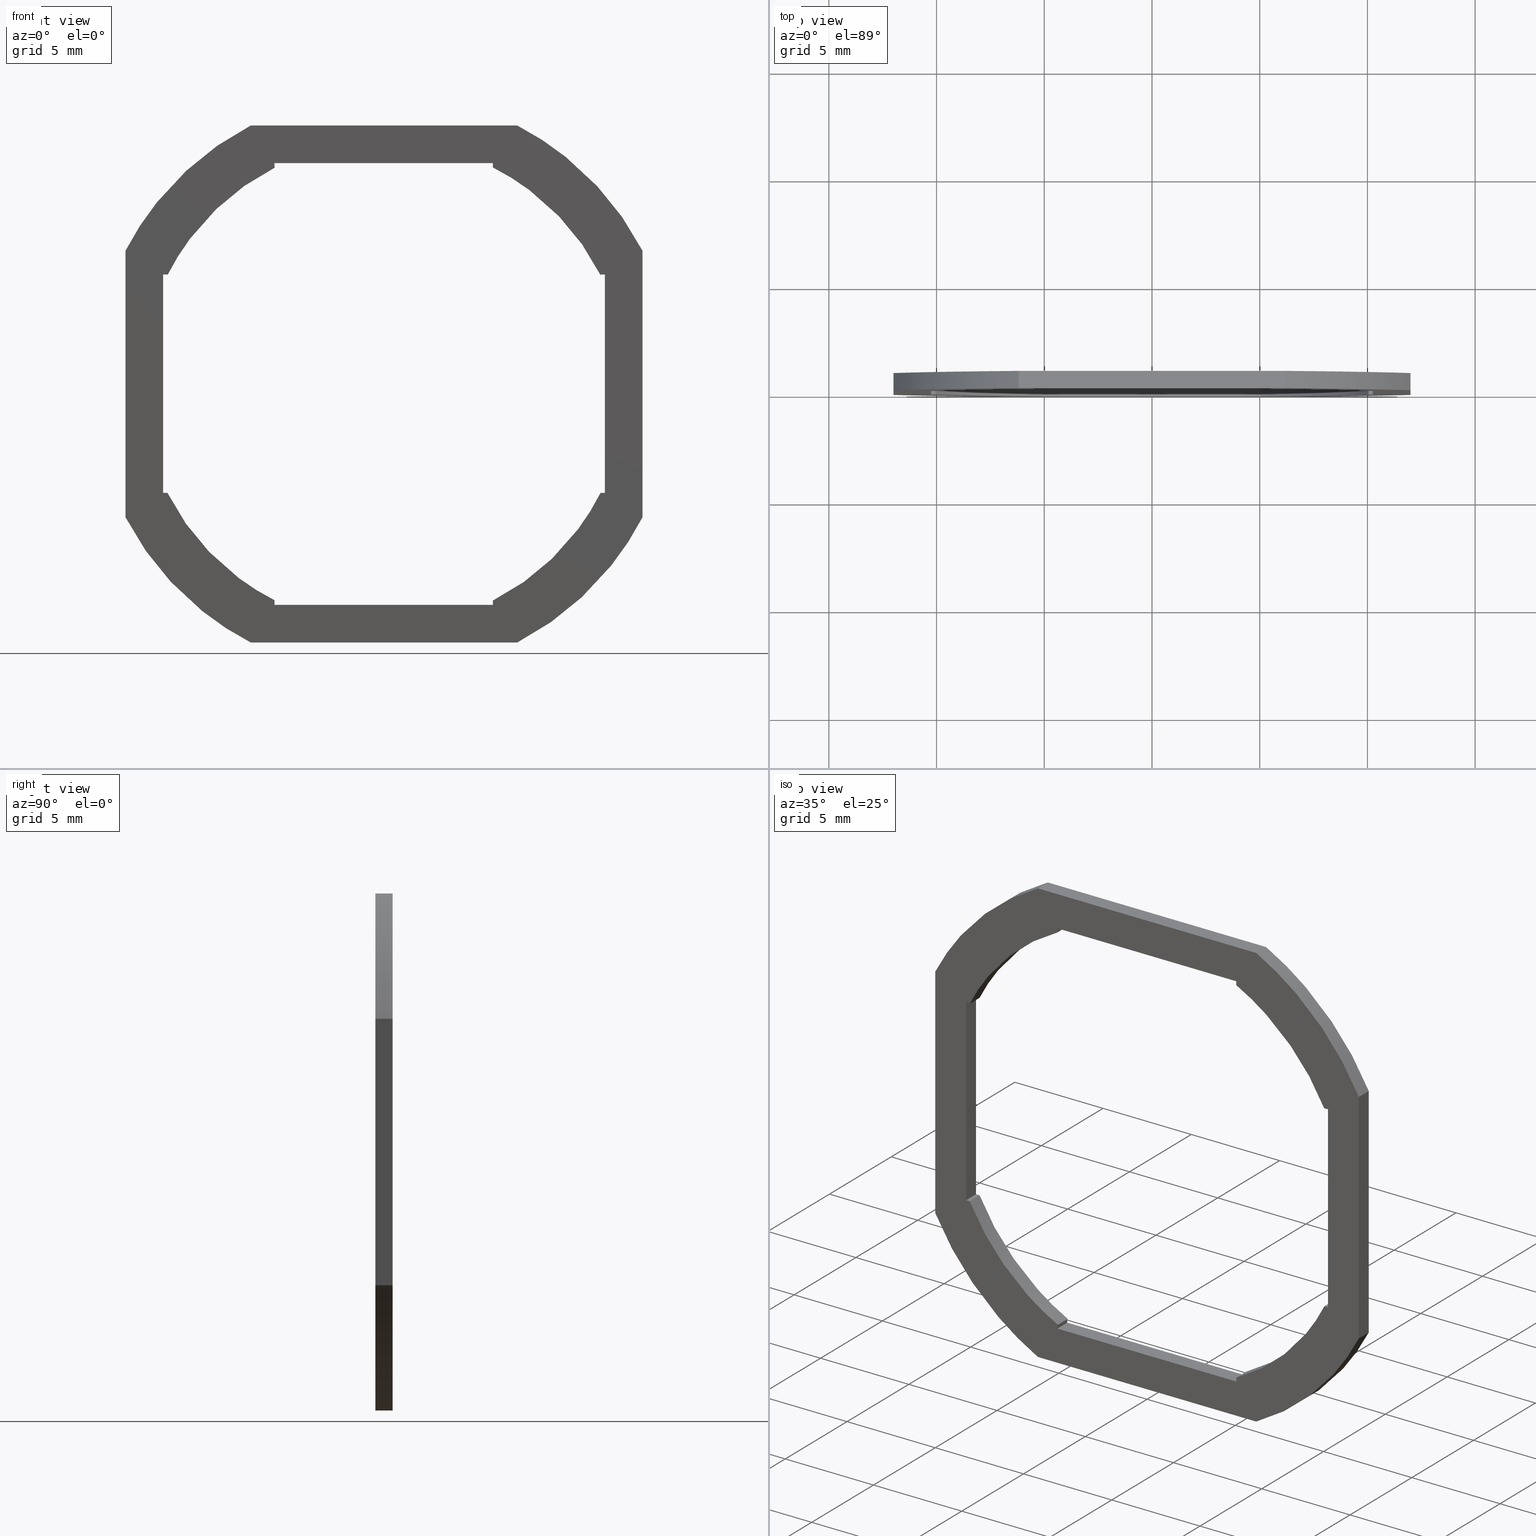
[diagram: canonical four-view strip — front | top / right | iso, engineering-drawing reading convention]
A machine part, canonical four-view strip (front | top / right | iso — engineering-drawing reading convention). The complete STEP part file that produces these views, byte-faithful:
ISO-10303-21;
HEADER;
/****************************************************************
 * Generated by software with PDE/Lib inside                    *
 * PDElib Version 4.4.1-0003, patched  Thursday August 19 11:58 *
 * International Technegroup Inc. (www.iti-oh.com)              *
 ****************************************************************/
FILE_DESCRIPTION((''),'2;1');
FILE_NAME('','2006-10-27T18:53:48',(''),(''),'','CADfix','');
FILE_SCHEMA(('AUTOMOTIVE_DESIGN'));
ENDSEC;
DATA;
#5=APPLICATION_CONTEXT('automotive design');
#6=APPLICATION_PROTOCOL_DEFINITION('Draft International Standard','automotive_design',1998,#5);
#7=PRODUCT_CONTEXT('None',#5,'mechanical');
#8=PRODUCT('packing','packing','None',(#7));
#9=PRODUCT_RELATED_PRODUCT_CATEGORY('part','description',(#8));
#10=PRODUCT_DEFINITION_FORMATION('','None',#8);
#11=PRODUCT_DEFINITION_CONTEXT('part definition',#5,'design');
#12=PRODUCT_DEFINITION('None','None',#10,#11);
#18=(NAMED_UNIT(*)PLANE_ANGLE_UNIT()SI_UNIT($,.RADIAN.));
#19=DIMENSIONAL_EXPONENTS(0.0,0.0,0.0,0.0,0.0,0.0,0.0);
#20=PLANE_ANGLE_MEASURE_WITH_UNIT(PLANE_ANGLE_MEASURE(0.017453292500000),#18);
#24=(CONVERSION_BASED_UNIT('DEGREE',#20)NAMED_UNIT(#19)PLANE_ANGLE_UNIT());
#28=(NAMED_UNIT(*)SI_UNIT($,.STERADIAN.)SOLID_ANGLE_UNIT());
#32=(LENGTH_UNIT()NAMED_UNIT(*)SI_UNIT(.MILLI.,.METRE.));
#34=UNCERTAINTY_MEASURE_WITH_UNIT(LENGTH_MEASURE(0.001000000000000),#32,'DISTANCE_ACCURACY_VALUE','');
#36=(GEOMETRIC_REPRESENTATION_CONTEXT(3)GLOBAL_UNCERTAINTY_ASSIGNED_CONTEXT((#34))GLOBAL_UNIT_ASSIGNED_CONTEXT((#24,#28,#32))REPRESENTATION_CONTEXT('None','None'));
#37=AXIS2_PLACEMENT_3D('',#38,#39,#40);
#38=CARTESIAN_POINT('',(0.0,0.0,0.0));
#39=DIRECTION('',(0.0,0.0,1.0));
#40=DIRECTION('',(1.0,0.0,0.0));
#41=ADVANCED_BREP_SHAPE_REPRESENTATION('',(#37,#1105),#36);
#42=PRODUCT_DEFINITION_SHAPE('','',#12);
#43=SHAPE_DEFINITION_REPRESENTATION(#42,#41);
#44=CARTESIAN_POINT('',(-13.198801030982510,0.0,13.198801030982469));
#45=CARTESIAN_POINT('',(13.198801245559199,0.0,13.198801030982469));
#46=CARTESIAN_POINT('',(-13.198801030982510,0.0,-13.198801245559221));
#47=CARTESIAN_POINT('',(13.198801245559199,0.0,-13.198801245559221));
#48=B_SPLINE_SURFACE_WITH_KNOTS('',1,1,((#44,#46),(#45,#47)),.UNSPECIFIED.,.F.,.F.,.U.,(2,2),(2,2),(0.0,26.397602276541718),(0.0,26.397602276541701),.UNSPECIFIED.);
#49=CARTESIAN_POINT('',(-6.184658732181810,0.0,12.000000569969499));
#50=VERTEX_POINT('',#49);
#51=CARTESIAN_POINT('',(6.184658732181830,0.0,12.000000569969499));
#52=VERTEX_POINT('',#51);
#53=CARTESIAN_POINT('',(-6.184658732181810,0.0,12.000000569969499));
#54=CARTESIAN_POINT('',(6.184658732181830,0.0,12.000000569969499));
#55=QUASI_UNIFORM_CURVE('',1,(#53,#54),.UNSPECIFIED.,.F.,.U.);
#56=EDGE_CURVE('',#50,#52,#55,.T.);
#57=ORIENTED_EDGE('',*,*,#56,.F.);
#58=CARTESIAN_POINT('',(-12.000000569969400,0.0,6.184658732181750));
#59=VERTEX_POINT('',#58);
#60=CARTESIAN_POINT('',(-6.184658732181801,0.0,12.000000569969490));
#61=CARTESIAN_POINT('',(-10.022184869378352,0.0,10.022184869378339));
#62=CARTESIAN_POINT('',(-12.000000569969400,0.0,6.184658732181750));
#70=(BOUNDED_CURVE()B_SPLINE_CURVE(2,(#60,#61,#62),.UNSPECIFIED.,.F.,.U.)CURVE()GEOMETRIC_REPRESENTATION_ITEM()QUASI_UNIFORM_CURVE()RATIONAL_B_SPLINE_CURVE((1.0,0.952481132990554,1.0))REPRESENTATION_ITEM(''));
#71=EDGE_CURVE('',#50,#59,#70,.T.);
#72=ORIENTED_EDGE('',*,*,#71,.T.);
#73=CARTESIAN_POINT('',(-12.000000569969540,0.0,-6.184658732181720));
#74=VERTEX_POINT('',#73);
#75=CARTESIAN_POINT('',(-12.000000569969540,0.0,-6.184658732181720));
#76=CARTESIAN_POINT('',(-12.000000569969400,0.0,6.184658732181750));
#77=QUASI_UNIFORM_CURVE('',1,(#75,#76),.UNSPECIFIED.,.F.,.U.);
#78=EDGE_CURVE('',#74,#59,#77,.T.);
#79=ORIENTED_EDGE('',*,*,#78,.F.);
#80=CARTESIAN_POINT('',(-6.184658732181759,0.0,-12.000000569969419));
#81=VERTEX_POINT('',#80);
#82=CARTESIAN_POINT('',(-12.000000569969540,0.0,-6.184658732181720));
#83=CARTESIAN_POINT('',(-10.022184869378391,0.0,-10.022184869378325));
#84=CARTESIAN_POINT('',(-6.184658732181759,0.0,-12.000000569969419));
#92=(BOUNDED_CURVE()B_SPLINE_CURVE(2,(#82,#83,#84),.UNSPECIFIED.,.F.,.U.)CURVE()GEOMETRIC_REPRESENTATION_ITEM()QUASI_UNIFORM_CURVE()RATIONAL_B_SPLINE_CURVE((1.0,0.952481132990553,1.0))REPRESENTATION_ITEM(''));
#93=EDGE_CURVE('',#74,#81,#92,.T.);
#94=ORIENTED_EDGE('',*,*,#93,.T.);
#95=CARTESIAN_POINT('',(6.184658732181750,0.0,-12.000000569969520));
#96=VERTEX_POINT('',#95);
#97=CARTESIAN_POINT('',(6.184658732181750,0.0,-12.000000569969520));
#98=CARTESIAN_POINT('',(-6.184658732181759,0.0,-12.000000569969419));
#99=QUASI_UNIFORM_CURVE('',1,(#97,#98),.UNSPECIFIED.,.F.,.U.);
#100=EDGE_CURVE('',#96,#81,#99,.T.);
#101=ORIENTED_EDGE('',*,*,#100,.F.);
#102=CARTESIAN_POINT('',(12.000000569969419,0.0,-6.184658732181750));
#103=VERTEX_POINT('',#102);
#104=CARTESIAN_POINT('',(6.184658732181743,0.0,-12.000000569969520));
#105=CARTESIAN_POINT('',(10.022184869378338,0.0,-10.022184869378369));
#106=CARTESIAN_POINT('',(12.000000569969419,0.0,-6.184658732181750));
#114=(BOUNDED_CURVE()B_SPLINE_CURVE(2,(#104,#105,#106),.UNSPECIFIED.,.F.,.U.)CURVE()GEOMETRIC_REPRESENTATION_ITEM()QUASI_UNIFORM_CURVE()RATIONAL_B_SPLINE_CURVE((1.0,0.952481132990553,1.0))REPRESENTATION_ITEM(''));
#115=EDGE_CURVE('',#96,#103,#114,.T.);
#116=ORIENTED_EDGE('',*,*,#115,.T.);
#117=CARTESIAN_POINT('',(12.000000569969499,0.0,6.184658732181820));
#118=VERTEX_POINT('',#117);
#119=CARTESIAN_POINT('',(12.000000569969499,0.0,6.184658732181820));
#120=CARTESIAN_POINT('',(12.000000569969419,0.0,-6.184658732181750));
#121=QUASI_UNIFORM_CURVE('',1,(#119,#120),.UNSPECIFIED.,.F.,.U.);
#122=EDGE_CURVE('',#118,#103,#121,.T.);
#123=ORIENTED_EDGE('',*,*,#122,.F.);
#124=CARTESIAN_POINT('',(12.000000569969499,0.0,6.184658732181810));
#125=CARTESIAN_POINT('',(10.022184869378350,0.0,10.022184869378339));
#126=CARTESIAN_POINT('',(6.184658732181829,0.0,12.000000569969499));
#134=(BOUNDED_CURVE()B_SPLINE_CURVE(2,(#124,#125,#126),.UNSPECIFIED.,.F.,.U.)CURVE()GEOMETRIC_REPRESENTATION_ITEM()QUASI_UNIFORM_CURVE()RATIONAL_B_SPLINE_CURVE((1.0,0.952481132990554,1.0))REPRESENTATION_ITEM(''));
#135=EDGE_CURVE('',#118,#52,#134,.T.);
#136=ORIENTED_EDGE('',*,*,#135,.T.);
#137=EDGE_LOOP('',(#57,#72,#79,#94,#101,#116,#123,#136));
#138=FACE_OUTER_BOUND('',#137,.T.);
#139=CARTESIAN_POINT('',(10.050000477349361,0.0,5.055690104038270));
#140=VERTEX_POINT('',#139);
#141=CARTESIAN_POINT('',(5.055690104038360,0.0,10.050000477349300));
#142=VERTEX_POINT('',#141);
#143=CARTESIAN_POINT('',(10.050000477349350,0.0,5.055690104038258));
#144=CARTESIAN_POINT('',(8.378465806703092,0.0,8.378465806703007));
#145=CARTESIAN_POINT('',(5.055690104038360,0.0,10.050000477349300));
#153=(BOUNDED_CURVE()B_SPLINE_CURVE(2,(#143,#144,#145),.UNSPECIFIED.,.F.,.U.)CURVE()GEOMETRIC_REPRESENTATION_ITEM()QUASI_UNIFORM_CURVE()RATIONAL_B_SPLINE_CURVE((1.0,0.949452065534999,1.0))REPRESENTATION_ITEM(''));
#154=EDGE_CURVE('',#140,#142,#153,.T.);
#155=ORIENTED_EDGE('',*,*,#154,.F.);
#156=CARTESIAN_POINT('',(10.050000477349400,0.0,5.081069177405830));
#157=VERTEX_POINT('',#156);
#158=CARTESIAN_POINT('',(10.050000477349400,0.0,5.081069177405830));
#159=CARTESIAN_POINT('',(10.050000477349361,0.0,5.055690104038270));
#160=QUASI_UNIFORM_CURVE('',1,(#158,#159),.UNSPECIFIED.,.F.,.U.);
#161=EDGE_CURVE('',#157,#140,#160,.T.);
#162=ORIENTED_EDGE('',*,*,#161,.F.);
#163=CARTESIAN_POINT('',(10.250000486848860,0.0,5.081069177405830));
#164=VERTEX_POINT('',#163);
#165=CARTESIAN_POINT('',(10.250000486848860,0.0,5.081069177405830));
#166=CARTESIAN_POINT('',(10.050000477349400,0.0,5.081069177405830));
#167=QUASI_UNIFORM_CURVE('',1,(#165,#166),.UNSPECIFIED.,.F.,.U.);
#168=EDGE_CURVE('',#164,#157,#167,.T.);
#169=ORIENTED_EDGE('',*,*,#168,.F.);
#170=CARTESIAN_POINT('',(10.250000486848860,0.0,-5.055690104038380));
#171=VERTEX_POINT('',#170);
#172=CARTESIAN_POINT('',(10.250000486848860,0.0,-5.055690104038380));
#173=CARTESIAN_POINT('',(10.250000486848860,0.0,5.081069177405830));
#174=QUASI_UNIFORM_CURVE('',1,(#172,#173),.UNSPECIFIED.,.F.,.U.);
#175=EDGE_CURVE('',#171,#164,#174,.T.);
#176=ORIENTED_EDGE('',*,*,#175,.F.);
#177=CARTESIAN_POINT('',(10.050000477349320,0.0,-5.055690104038360));
#178=VERTEX_POINT('',#177);
#179=CARTESIAN_POINT('',(10.050000477349320,0.0,-5.055690104038360));
#180=CARTESIAN_POINT('',(10.250000486848860,0.0,-5.055690104038380));
#181=QUASI_UNIFORM_CURVE('',1,(#179,#180),.UNSPECIFIED.,.F.,.U.);
#182=EDGE_CURVE('',#178,#171,#181,.T.);
#183=ORIENTED_EDGE('',*,*,#182,.F.);
#184=CARTESIAN_POINT('',(5.055690104038360,0.0,-10.050000477349300));
#185=VERTEX_POINT('',#184);
#186=CARTESIAN_POINT('',(5.055690104038356,0.0,-10.050000477349300));
#187=CARTESIAN_POINT('',(8.378465806703035,0.0,-8.378465806703034));
#188=CARTESIAN_POINT('',(10.050000477349309,0.0,-5.055690104038351));
#196=(BOUNDED_CURVE()B_SPLINE_CURVE(2,(#186,#187,#188),.UNSPECIFIED.,.F.,.U.)CURVE()GEOMETRIC_REPRESENTATION_ITEM()QUASI_UNIFORM_CURVE()RATIONAL_B_SPLINE_CURVE((1.0,0.949452065535000,1.0))REPRESENTATION_ITEM(''));
#197=EDGE_CURVE('',#185,#178,#196,.T.);
#198=ORIENTED_EDGE('',*,*,#197,.F.);
#199=CARTESIAN_POINT('',(5.055690104038391,0.0,-10.250000486848879));
#200=VERTEX_POINT('',#199);
#201=CARTESIAN_POINT('',(5.055690104038391,0.0,-10.250000486848879));
#202=CARTESIAN_POINT('',(5.055690104038360,0.0,-10.050000477349300));
#203=QUASI_UNIFORM_CURVE('',1,(#201,#202),.UNSPECIFIED.,.F.,.U.);
#204=EDGE_CURVE('',#200,#185,#203,.T.);
#205=ORIENTED_EDGE('',*,*,#204,.F.);
#206=CARTESIAN_POINT('',(-5.081069177405810,0.0,-10.250000486848879));
#207=VERTEX_POINT('',#206);
#208=CARTESIAN_POINT('',(-5.081069177405810,0.0,-10.250000486848879));
#209=CARTESIAN_POINT('',(5.055690104038391,0.0,-10.250000486848879));
#210=QUASI_UNIFORM_CURVE('',1,(#208,#209),.UNSPECIFIED.,.F.,.U.);
#211=EDGE_CURVE('',#207,#200,#210,.T.);
#212=ORIENTED_EDGE('',*,*,#211,.F.);
#213=CARTESIAN_POINT('',(-5.081069177405810,0.0,-10.050000477349400));
#214=VERTEX_POINT('',#213);
#215=CARTESIAN_POINT('',(-5.081069177405810,0.0,-10.050000477349400));
#216=CARTESIAN_POINT('',(-5.081069177405810,0.0,-10.250000486848879));
#217=QUASI_UNIFORM_CURVE('',1,(#215,#216),.UNSPECIFIED.,.F.,.U.);
#218=EDGE_CURVE('',#214,#207,#217,.T.);
#219=ORIENTED_EDGE('',*,*,#218,.F.);
#220=CARTESIAN_POINT('',(-5.055690104038270,0.0,-10.050000477349339));
#221=VERTEX_POINT('',#220);
#222=CARTESIAN_POINT('',(-5.055690104038270,0.0,-10.050000477349339));
#223=CARTESIAN_POINT('',(-5.081069177405810,0.0,-10.050000477349400));
#224=QUASI_UNIFORM_CURVE('',1,(#222,#223),.UNSPECIFIED.,.F.,.U.);
#225=EDGE_CURVE('',#221,#214,#224,.T.);
#226=ORIENTED_EDGE('',*,*,#225,.F.);
#227=CARTESIAN_POINT('',(-10.050000477349300,0.0,-5.055690104038360));
#228=VERTEX_POINT('',#227);
#229=CARTESIAN_POINT('',(-10.050000477349290,0.0,-5.055690104038348));
#230=CARTESIAN_POINT('',(-8.378465806703003,0.0,-8.378465806703074));
#231=CARTESIAN_POINT('',(-5.055690104038267,0.0,-10.050000477349339));
#239=(BOUNDED_CURVE()B_SPLINE_CURVE(2,(#229,#230,#231),.UNSPECIFIED.,.F.,.U.)CURVE()GEOMETRIC_REPRESENTATION_ITEM()QUASI_UNIFORM_CURVE()RATIONAL_B_SPLINE_CURVE((1.0,0.949452065534999,1.0))REPRESENTATION_ITEM(''));
#240=EDGE_CURVE('',#228,#221,#239,.T.);
#241=ORIENTED_EDGE('',*,*,#240,.F.);
#242=CARTESIAN_POINT('',(-10.250000486848901,0.0,-5.055690104038380));
#243=VERTEX_POINT('',#242);
#244=CARTESIAN_POINT('',(-10.250000486848901,0.0,-5.055690104038380));
#245=CARTESIAN_POINT('',(-10.050000477349300,0.0,-5.055690104038360));
#246=QUASI_UNIFORM_CURVE('',1,(#244,#245),.UNSPECIFIED.,.F.,.U.);
#247=EDGE_CURVE('',#243,#228,#246,.T.);
#248=ORIENTED_EDGE('',*,*,#247,.F.);
#249=CARTESIAN_POINT('',(-10.250000486848901,0.0,5.081069177405820));
#250=VERTEX_POINT('',#249);
#251=CARTESIAN_POINT('',(-10.250000486848901,0.0,5.081069177405820));
#252=CARTESIAN_POINT('',(-10.250000486848901,0.0,-5.055690104038380));
#253=QUASI_UNIFORM_CURVE('',1,(#251,#252),.UNSPECIFIED.,.F.,.U.);
#254=EDGE_CURVE('',#250,#243,#253,.T.);
#255=ORIENTED_EDGE('',*,*,#254,.F.);
#256=CARTESIAN_POINT('',(-10.050000477349400,0.0,5.081069177405820));
#257=VERTEX_POINT('',#256);
#258=CARTESIAN_POINT('',(-10.050000477349400,0.0,5.081069177405820));
#259=CARTESIAN_POINT('',(-10.250000486848901,0.0,5.081069177405820));
#260=QUASI_UNIFORM_CURVE('',1,(#258,#259),.UNSPECIFIED.,.F.,.U.);
#261=EDGE_CURVE('',#257,#250,#260,.T.);
#262=ORIENTED_EDGE('',*,*,#261,.F.);
#263=CARTESIAN_POINT('',(-10.050000477349339,0.0,5.055690104038281));
#264=VERTEX_POINT('',#263);
#265=CARTESIAN_POINT('',(-10.050000477349339,0.0,5.055690104038281));
#266=CARTESIAN_POINT('',(-10.050000477349400,0.0,5.081069177405820));
#267=QUASI_UNIFORM_CURVE('',1,(#265,#266),.UNSPECIFIED.,.F.,.U.);
#268=EDGE_CURVE('',#264,#257,#267,.T.);
#269=ORIENTED_EDGE('',*,*,#268,.F.);
#270=CARTESIAN_POINT('',(-5.055690104038261,0.0,10.050000477349361));
#271=VERTEX_POINT('',#270);
#272=CARTESIAN_POINT('',(-5.055690104038261,0.0,10.050000477349350));
#273=CARTESIAN_POINT('',(-8.378465806703053,0.0,8.378465806703066));
#274=CARTESIAN_POINT('',(-10.050000477349339,0.0,5.055690104038275));
#282=(BOUNDED_CURVE()B_SPLINE_CURVE(2,(#272,#273,#274),.UNSPECIFIED.,.F.,.U.)CURVE()GEOMETRIC_REPRESENTATION_ITEM()QUASI_UNIFORM_CURVE()RATIONAL_B_SPLINE_CURVE((1.0,0.949452065534997,1.0))REPRESENTATION_ITEM(''));
#283=EDGE_CURVE('',#271,#264,#282,.T.);
#284=ORIENTED_EDGE('',*,*,#283,.F.);
#285=CARTESIAN_POINT('',(-5.081069177405820,0.0,10.050000477349400));
#286=VERTEX_POINT('',#285);
#287=CARTESIAN_POINT('',(-5.081069177405820,0.0,10.050000477349400));
#288=CARTESIAN_POINT('',(-5.055690104038261,0.0,10.050000477349361));
#289=QUASI_UNIFORM_CURVE('',1,(#287,#288),.UNSPECIFIED.,.F.,.U.);
#290=EDGE_CURVE('',#286,#271,#289,.T.);
#291=ORIENTED_EDGE('',*,*,#290,.F.);
#292=CARTESIAN_POINT('',(-5.081069177405820,0.0,10.250000486848879));
#293=VERTEX_POINT('',#292);
#294=CARTESIAN_POINT('',(-5.081069177405820,0.0,10.250000486848879));
#295=CARTESIAN_POINT('',(-5.081069177405820,0.0,10.050000477349400));
#296=QUASI_UNIFORM_CURVE('',1,(#294,#295),.UNSPECIFIED.,.F.,.U.);
#297=EDGE_CURVE('',#293,#286,#296,.T.);
#298=ORIENTED_EDGE('',*,*,#297,.F.);
#299=CARTESIAN_POINT('',(5.055690104038380,0.0,10.250000486848879));
#300=VERTEX_POINT('',#299);
#301=CARTESIAN_POINT('',(5.055690104038380,0.0,10.250000486848879));
#302=CARTESIAN_POINT('',(-5.081069177405820,0.0,10.250000486848879));
#303=QUASI_UNIFORM_CURVE('',1,(#301,#302),.UNSPECIFIED.,.F.,.U.);
#304=EDGE_CURVE('',#300,#293,#303,.T.);
#305=ORIENTED_EDGE('',*,*,#304,.F.);
#306=CARTESIAN_POINT('',(5.055690104038360,0.0,10.050000477349300));
#307=CARTESIAN_POINT('',(5.055690104038380,0.0,10.250000486848879));
#308=QUASI_UNIFORM_CURVE('',1,(#306,#307),.UNSPECIFIED.,.F.,.U.);
#309=EDGE_CURVE('',#142,#300,#308,.T.);
#310=ORIENTED_EDGE('',*,*,#309,.F.);
#311=EDGE_LOOP('',(#155,#162,#169,#176,#183,#198,#205,#212,#219,#226,#241,#248,#255,#262,#269,#284,#291,#298,#305,#310));
#312=FACE_BOUND('',#311,.T.);
#313=ADVANCED_FACE('',(#138,#312),#48,.F.);
#314=CARTESIAN_POINT('',(-13.198801030982510,0.800000000000000,13.198801030982469));
#315=CARTESIAN_POINT('',(13.198801245559199,0.800000000000000,13.198801030982469));
#316=CARTESIAN_POINT('',(-13.198801030982510,0.800000000000000,-13.198801245559221));
#317=CARTESIAN_POINT('',(13.198801245559199,0.800000000000000,-13.198801245559221));
#318=B_SPLINE_SURFACE_WITH_KNOTS('',1,1,((#314,#316),(#315,#317)),.UNSPECIFIED.,.F.,.F.,.U.,(2,2),(2,2),(0.0,26.397602276541718),(0.0,26.397602276541701),.UNSPECIFIED.);
#319=CARTESIAN_POINT('',(-6.184658732181810,0.800000000000023,12.000000569969499));
#320=VERTEX_POINT('',#319);
#321=CARTESIAN_POINT('',(6.184658732181830,0.800000000000023,12.000000569969499));
#322=VERTEX_POINT('',#321);
#323=CARTESIAN_POINT('',(-6.184658732181810,0.800000000000023,12.000000569969499));
#324=CARTESIAN_POINT('',(6.184658732181830,0.800000000000023,12.000000569969499));
#325=QUASI_UNIFORM_CURVE('',1,(#323,#324),.UNSPECIFIED.,.F.,.U.);
#326=EDGE_CURVE('',#320,#322,#325,.T.);
#327=ORIENTED_EDGE('',*,*,#326,.T.);
#328=CARTESIAN_POINT('',(12.000000569969499,0.800000000000023,6.184658732181820));
#329=VERTEX_POINT('',#328);
#330=CARTESIAN_POINT('',(12.000000569969499,0.800000000000023,6.184658732181810));
#331=CARTESIAN_POINT('',(10.022184869378350,0.800000000000023,10.022184869378339));
#332=CARTESIAN_POINT('',(6.184658732181829,0.800000000000023,12.000000569969499));
#340=(BOUNDED_CURVE()B_SPLINE_CURVE(2,(#330,#331,#332),.UNSPECIFIED.,.F.,.U.)CURVE()GEOMETRIC_REPRESENTATION_ITEM()QUASI_UNIFORM_CURVE()RATIONAL_B_SPLINE_CURVE((1.0,0.952481132990554,1.0))REPRESENTATION_ITEM(''));
#341=EDGE_CURVE('',#329,#322,#340,.T.);
#342=ORIENTED_EDGE('',*,*,#341,.F.);
#343=CARTESIAN_POINT('',(12.000000569969419,0.800000000000023,-6.184658732181750));
#344=VERTEX_POINT('',#343);
#345=CARTESIAN_POINT('',(12.000000569969499,0.800000000000023,6.184658732181820));
#346=CARTESIAN_POINT('',(12.000000569969419,0.800000000000023,-6.184658732181750));
#347=QUASI_UNIFORM_CURVE('',1,(#345,#346),.UNSPECIFIED.,.F.,.U.);
#348=EDGE_CURVE('',#329,#344,#347,.T.);
#349=ORIENTED_EDGE('',*,*,#348,.T.);
#350=CARTESIAN_POINT('',(6.184658732181750,0.800000000000023,-12.000000569969520));
#351=VERTEX_POINT('',#350);
#352=CARTESIAN_POINT('',(6.184658732181743,0.800000000000023,-12.000000569969520));
#353=CARTESIAN_POINT('',(10.022184869378338,0.800000000000023,-10.022184869378369));
#354=CARTESIAN_POINT('',(12.000000569969419,0.800000000000023,-6.184658732181750));
#362=(BOUNDED_CURVE()B_SPLINE_CURVE(2,(#352,#353,#354),.UNSPECIFIED.,.F.,.U.)CURVE()GEOMETRIC_REPRESENTATION_ITEM()QUASI_UNIFORM_CURVE()RATIONAL_B_SPLINE_CURVE((1.0,0.952481132990553,1.0))REPRESENTATION_ITEM(''));
#363=EDGE_CURVE('',#351,#344,#362,.T.);
#364=ORIENTED_EDGE('',*,*,#363,.F.);
#365=CARTESIAN_POINT('',(-6.184658732181759,0.800000000000023,-12.000000569969419));
#366=VERTEX_POINT('',#365);
#367=CARTESIAN_POINT('',(6.184658732181750,0.800000000000023,-12.000000569969520));
#368=CARTESIAN_POINT('',(-6.184658732181759,0.800000000000023,-12.000000569969419));
#369=QUASI_UNIFORM_CURVE('',1,(#367,#368),.UNSPECIFIED.,.F.,.U.);
#370=EDGE_CURVE('',#351,#366,#369,.T.);
#371=ORIENTED_EDGE('',*,*,#370,.T.);
#372=CARTESIAN_POINT('',(-12.000000569969540,0.800000000000023,-6.184658732181720));
#373=VERTEX_POINT('',#372);
#374=CARTESIAN_POINT('',(-12.000000569969540,0.800000000000023,-6.184658732181720));
#375=CARTESIAN_POINT('',(-10.022184869378391,0.800000000000023,-10.022184869378325));
#376=CARTESIAN_POINT('',(-6.184658732181759,0.800000000000023,-12.000000569969419));
#384=(BOUNDED_CURVE()B_SPLINE_CURVE(2,(#374,#375,#376),.UNSPECIFIED.,.F.,.U.)CURVE()GEOMETRIC_REPRESENTATION_ITEM()QUASI_UNIFORM_CURVE()RATIONAL_B_SPLINE_CURVE((1.0,0.952481132990553,1.0))REPRESENTATION_ITEM(''));
#385=EDGE_CURVE('',#373,#366,#384,.T.);
#386=ORIENTED_EDGE('',*,*,#385,.F.);
#387=CARTESIAN_POINT('',(-12.000000569969400,0.800000000000023,6.184658732181750));
#388=VERTEX_POINT('',#387);
#389=CARTESIAN_POINT('',(-12.000000569969540,0.800000000000023,-6.184658732181720));
#390=CARTESIAN_POINT('',(-12.000000569969400,0.800000000000023,6.184658732181750));
#391=QUASI_UNIFORM_CURVE('',1,(#389,#390),.UNSPECIFIED.,.F.,.U.);
#392=EDGE_CURVE('',#373,#388,#391,.T.);
#393=ORIENTED_EDGE('',*,*,#392,.T.);
#394=CARTESIAN_POINT('',(-6.184658732181801,0.800000000000023,12.000000569969490));
#395=CARTESIAN_POINT('',(-10.022184869378352,0.800000000000023,10.022184869378339));
#396=CARTESIAN_POINT('',(-12.000000569969400,0.800000000000023,6.184658732181750));
#404=(BOUNDED_CURVE()B_SPLINE_CURVE(2,(#394,#395,#396),.UNSPECIFIED.,.F.,.U.)CURVE()GEOMETRIC_REPRESENTATION_ITEM()QUASI_UNIFORM_CURVE()RATIONAL_B_SPLINE_CURVE((1.0,0.952481132990554,1.0))REPRESENTATION_ITEM(''));
#405=EDGE_CURVE('',#320,#388,#404,.T.);
#406=ORIENTED_EDGE('',*,*,#405,.F.);
#407=EDGE_LOOP('',(#327,#342,#349,#364,#371,#386,#393,#406));
#408=FACE_OUTER_BOUND('',#407,.T.);
#409=CARTESIAN_POINT('',(10.050000477349361,0.800000000000023,5.055690104038270));
#410=VERTEX_POINT('',#409);
#411=CARTESIAN_POINT('',(5.055690104038360,0.800000000000023,10.050000477349300));
#412=VERTEX_POINT('',#411);
#413=CARTESIAN_POINT('',(10.050000477349350,0.800000000000023,5.055690104038258));
#414=CARTESIAN_POINT('',(8.378465806703092,0.800000000000023,8.378465806703007));
#415=CARTESIAN_POINT('',(5.055690104038360,0.800000000000023,10.050000477349300));
#423=(BOUNDED_CURVE()B_SPLINE_CURVE(2,(#413,#414,#415),.UNSPECIFIED.,.F.,.U.)CURVE()GEOMETRIC_REPRESENTATION_ITEM()QUASI_UNIFORM_CURVE()RATIONAL_B_SPLINE_CURVE((1.0,0.949452065534999,1.0))REPRESENTATION_ITEM(''));
#424=EDGE_CURVE('',#410,#412,#423,.T.);
#425=ORIENTED_EDGE('',*,*,#424,.T.);
#426=CARTESIAN_POINT('',(5.055690104038380,0.800000000000023,10.250000486848879));
#427=VERTEX_POINT('',#426);
#428=CARTESIAN_POINT('',(5.055690104038360,0.800000000000023,10.050000477349300));
#429=CARTESIAN_POINT('',(5.055690104038380,0.800000000000023,10.250000486848879));
#430=QUASI_UNIFORM_CURVE('',1,(#428,#429),.UNSPECIFIED.,.F.,.U.);
#431=EDGE_CURVE('',#412,#427,#430,.T.);
#432=ORIENTED_EDGE('',*,*,#431,.T.);
#433=CARTESIAN_POINT('',(-5.081069177405820,0.800000000000023,10.250000486848879));
#434=VERTEX_POINT('',#433);
#435=CARTESIAN_POINT('',(5.055690104038380,0.800000000000023,10.250000486848879));
#436=CARTESIAN_POINT('',(-5.081069177405820,0.800000000000023,10.250000486848879));
#437=QUASI_UNIFORM_CURVE('',1,(#435,#436),.UNSPECIFIED.,.F.,.U.);
#438=EDGE_CURVE('',#427,#434,#437,.T.);
#439=ORIENTED_EDGE('',*,*,#438,.T.);
#440=CARTESIAN_POINT('',(-5.081069177405820,0.800000000000023,10.050000477349400));
#441=VERTEX_POINT('',#440);
#442=CARTESIAN_POINT('',(-5.081069177405820,0.800000000000023,10.250000486848879));
#443=CARTESIAN_POINT('',(-5.081069177405820,0.800000000000023,10.050000477349400));
#444=QUASI_UNIFORM_CURVE('',1,(#442,#443),.UNSPECIFIED.,.F.,.U.);
#445=EDGE_CURVE('',#434,#441,#444,.T.);
#446=ORIENTED_EDGE('',*,*,#445,.T.);
#447=CARTESIAN_POINT('',(-5.055690104038261,0.800000000000023,10.050000477349361));
#448=VERTEX_POINT('',#447);
#449=CARTESIAN_POINT('',(-5.081069177405820,0.800000000000023,10.050000477349400));
#450=CARTESIAN_POINT('',(-5.055690104038261,0.800000000000023,10.050000477349361));
#451=QUASI_UNIFORM_CURVE('',1,(#449,#450),.UNSPECIFIED.,.F.,.U.);
#452=EDGE_CURVE('',#441,#448,#451,.T.);
#453=ORIENTED_EDGE('',*,*,#452,.T.);
#454=CARTESIAN_POINT('',(-10.050000477349339,0.800000000000023,5.055690104038281));
#455=VERTEX_POINT('',#454);
#456=CARTESIAN_POINT('',(-5.055690104038261,0.800000000000023,10.050000477349350));
#457=CARTESIAN_POINT('',(-8.378465806703053,0.800000000000023,8.378465806703066));
#458=CARTESIAN_POINT('',(-10.050000477349339,0.800000000000023,5.055690104038275));
#466=(BOUNDED_CURVE()B_SPLINE_CURVE(2,(#456,#457,#458),.UNSPECIFIED.,.F.,.U.)CURVE()GEOMETRIC_REPRESENTATION_ITEM()QUASI_UNIFORM_CURVE()RATIONAL_B_SPLINE_CURVE((1.0,0.949452065534997,1.0))REPRESENTATION_ITEM(''));
#467=EDGE_CURVE('',#448,#455,#466,.T.);
#468=ORIENTED_EDGE('',*,*,#467,.T.);
#469=CARTESIAN_POINT('',(-10.050000477349400,0.800000000000023,5.081069177405820));
#470=VERTEX_POINT('',#469);
#471=CARTESIAN_POINT('',(-10.050000477349339,0.800000000000023,5.055690104038281));
#472=CARTESIAN_POINT('',(-10.050000477349400,0.800000000000023,5.081069177405820));
#473=QUASI_UNIFORM_CURVE('',1,(#471,#472),.UNSPECIFIED.,.F.,.U.);
#474=EDGE_CURVE('',#455,#470,#473,.T.);
#475=ORIENTED_EDGE('',*,*,#474,.T.);
#476=CARTESIAN_POINT('',(-10.250000486848901,0.800000000000023,5.081069177405820));
#477=VERTEX_POINT('',#476);
#478=CARTESIAN_POINT('',(-10.050000477349400,0.800000000000023,5.081069177405820));
#479=CARTESIAN_POINT('',(-10.250000486848901,0.800000000000023,5.081069177405820));
#480=QUASI_UNIFORM_CURVE('',1,(#478,#479),.UNSPECIFIED.,.F.,.U.);
#481=EDGE_CURVE('',#470,#477,#480,.T.);
#482=ORIENTED_EDGE('',*,*,#481,.T.);
#483=CARTESIAN_POINT('',(-10.250000486848901,0.800000000000023,-5.055690104038380));
#484=VERTEX_POINT('',#483);
#485=CARTESIAN_POINT('',(-10.250000486848901,0.800000000000023,5.081069177405820));
#486=CARTESIAN_POINT('',(-10.250000486848901,0.800000000000023,-5.055690104038380));
#487=QUASI_UNIFORM_CURVE('',1,(#485,#486),.UNSPECIFIED.,.F.,.U.);
#488=EDGE_CURVE('',#477,#484,#487,.T.);
#489=ORIENTED_EDGE('',*,*,#488,.T.);
#490=CARTESIAN_POINT('',(-10.050000477349300,0.800000000000023,-5.055690104038360));
#491=VERTEX_POINT('',#490);
#492=CARTESIAN_POINT('',(-10.250000486848901,0.800000000000023,-5.055690104038380));
#493=CARTESIAN_POINT('',(-10.050000477349300,0.800000000000023,-5.055690104038360));
#494=QUASI_UNIFORM_CURVE('',1,(#492,#493),.UNSPECIFIED.,.F.,.U.);
#495=EDGE_CURVE('',#484,#491,#494,.T.);
#496=ORIENTED_EDGE('',*,*,#495,.T.);
#497=CARTESIAN_POINT('',(-5.055690104038270,0.800000000000023,-10.050000477349339));
#498=VERTEX_POINT('',#497);
#499=CARTESIAN_POINT('',(-10.050000477349290,0.800000000000023,-5.055690104038348));
#500=CARTESIAN_POINT('',(-8.378465806703003,0.800000000000023,-8.378465806703074));
#501=CARTESIAN_POINT('',(-5.055690104038267,0.800000000000023,-10.050000477349339));
#509=(BOUNDED_CURVE()B_SPLINE_CURVE(2,(#499,#500,#501),.UNSPECIFIED.,.F.,.U.)CURVE()GEOMETRIC_REPRESENTATION_ITEM()QUASI_UNIFORM_CURVE()RATIONAL_B_SPLINE_CURVE((1.0,0.949452065534999,1.0))REPRESENTATION_ITEM(''));
#510=EDGE_CURVE('',#491,#498,#509,.T.);
#511=ORIENTED_EDGE('',*,*,#510,.T.);
#512=CARTESIAN_POINT('',(-5.081069177405810,0.800000000000023,-10.050000477349400));
#513=VERTEX_POINT('',#512);
#514=CARTESIAN_POINT('',(-5.055690104038270,0.800000000000023,-10.050000477349339));
#515=CARTESIAN_POINT('',(-5.081069177405810,0.800000000000023,-10.050000477349400));
#516=QUASI_UNIFORM_CURVE('',1,(#514,#515),.UNSPECIFIED.,.F.,.U.);
#517=EDGE_CURVE('',#498,#513,#516,.T.);
#518=ORIENTED_EDGE('',*,*,#517,.T.);
#519=CARTESIAN_POINT('',(-5.081069177405810,0.800000000000023,-10.250000486848879));
#520=VERTEX_POINT('',#519);
#521=CARTESIAN_POINT('',(-5.081069177405810,0.800000000000023,-10.050000477349400));
#522=CARTESIAN_POINT('',(-5.081069177405810,0.800000000000023,-10.250000486848879));
#523=QUASI_UNIFORM_CURVE('',1,(#521,#522),.UNSPECIFIED.,.F.,.U.);
#524=EDGE_CURVE('',#513,#520,#523,.T.);
#525=ORIENTED_EDGE('',*,*,#524,.T.);
#526=CARTESIAN_POINT('',(5.055690104038391,0.800000000000023,-10.250000486848879));
#527=VERTEX_POINT('',#526);
#528=CARTESIAN_POINT('',(-5.081069177405810,0.800000000000023,-10.250000486848879));
#529=CARTESIAN_POINT('',(5.055690104038391,0.800000000000023,-10.250000486848879));
#530=QUASI_UNIFORM_CURVE('',1,(#528,#529),.UNSPECIFIED.,.F.,.U.);
#531=EDGE_CURVE('',#520,#527,#530,.T.);
#532=ORIENTED_EDGE('',*,*,#531,.T.);
#533=CARTESIAN_POINT('',(5.055690104038360,0.800000000000023,-10.050000477349300));
#534=VERTEX_POINT('',#533);
#535=CARTESIAN_POINT('',(5.055690104038391,0.800000000000023,-10.250000486848879));
#536=CARTESIAN_POINT('',(5.055690104038360,0.800000000000023,-10.050000477349300));
#537=QUASI_UNIFORM_CURVE('',1,(#535,#536),.UNSPECIFIED.,.F.,.U.);
#538=EDGE_CURVE('',#527,#534,#537,.T.);
#539=ORIENTED_EDGE('',*,*,#538,.T.);
#540=CARTESIAN_POINT('',(10.050000477349320,0.800000000000023,-5.055690104038360));
#541=VERTEX_POINT('',#540);
#542=CARTESIAN_POINT('',(5.055690104038356,0.800000000000023,-10.050000477349300));
#543=CARTESIAN_POINT('',(8.378465806703035,0.800000000000023,-8.378465806703034));
#544=CARTESIAN_POINT('',(10.050000477349309,0.800000000000023,-5.055690104038351));
#552=(BOUNDED_CURVE()B_SPLINE_CURVE(2,(#542,#543,#544),.UNSPECIFIED.,.F.,.U.)CURVE()GEOMETRIC_REPRESENTATION_ITEM()QUASI_UNIFORM_CURVE()RATIONAL_B_SPLINE_CURVE((1.0,0.949452065535000,1.0))REPRESENTATION_ITEM(''));
#553=EDGE_CURVE('',#534,#541,#552,.T.);
#554=ORIENTED_EDGE('',*,*,#553,.T.);
#555=CARTESIAN_POINT('',(10.250000486848860,0.800000000000023,-5.055690104038380));
#556=VERTEX_POINT('',#555);
#557=CARTESIAN_POINT('',(10.050000477349320,0.800000000000023,-5.055690104038360));
#558=CARTESIAN_POINT('',(10.250000486848860,0.800000000000023,-5.055690104038380));
#559=QUASI_UNIFORM_CURVE('',1,(#557,#558),.UNSPECIFIED.,.F.,.U.);
#560=EDGE_CURVE('',#541,#556,#559,.T.);
#561=ORIENTED_EDGE('',*,*,#560,.T.);
#562=CARTESIAN_POINT('',(10.250000486848860,0.800000000000023,5.081069177405830));
#563=VERTEX_POINT('',#562);
#564=CARTESIAN_POINT('',(10.250000486848860,0.800000000000023,-5.055690104038380));
#565=CARTESIAN_POINT('',(10.250000486848860,0.800000000000023,5.081069177405830));
#566=QUASI_UNIFORM_CURVE('',1,(#564,#565),.UNSPECIFIED.,.F.,.U.);
#567=EDGE_CURVE('',#556,#563,#566,.T.);
#568=ORIENTED_EDGE('',*,*,#567,.T.);
#569=CARTESIAN_POINT('',(10.050000477349400,0.800000000000023,5.081069177405830));
#570=VERTEX_POINT('',#569);
#571=CARTESIAN_POINT('',(10.250000486848860,0.800000000000023,5.081069177405830));
#572=CARTESIAN_POINT('',(10.050000477349400,0.800000000000023,5.081069177405830));
#573=QUASI_UNIFORM_CURVE('',1,(#571,#572),.UNSPECIFIED.,.F.,.U.);
#574=EDGE_CURVE('',#563,#570,#573,.T.);
#575=ORIENTED_EDGE('',*,*,#574,.T.);
#576=CARTESIAN_POINT('',(10.050000477349400,0.800000000000023,5.081069177405830));
#577=CARTESIAN_POINT('',(10.050000477349361,0.800000000000023,5.055690104038270));
#578=QUASI_UNIFORM_CURVE('',1,(#576,#577),.UNSPECIFIED.,.F.,.U.);
#579=EDGE_CURVE('',#570,#410,#578,.T.);
#580=ORIENTED_EDGE('',*,*,#579,.T.);
#581=EDGE_LOOP('',(#425,#432,#439,#446,#453,#468,#475,#482,#489,#496,#511,#518,#525,#532,#539,#554,#561,#568,#575,#580));
#582=FACE_BOUND('',#581,.T.);
#583=ADVANCED_FACE('',(#408,#582),#318,.T.);
#584=CARTESIAN_POINT('',(10.050000477349361,-0.039959998449446,5.054422622310875));
#585=CARTESIAN_POINT('',(10.050000477349400,-0.039959998449446,5.082336659133225));
#586=CARTESIAN_POINT('',(10.050000477349361,0.839960019907141,5.054422622310875));
#587=CARTESIAN_POINT('',(10.050000477349400,0.839960019907141,5.082336659133225));
#588=B_SPLINE_SURFACE_WITH_KNOTS('',1,1,((#584,#586),(#585,#587)),.UNSPECIFIED.,.F.,.F.,.U.,(2,2),(2,2),(0.0,0.027914036822351),(0.041708334948495,0.958291687403247),.UNSPECIFIED.);
#589=ORIENTED_EDGE('',*,*,#161,.T.);
#590=CARTESIAN_POINT('',(10.050000477349361,0.800000000000023,5.055690104038270));
#591=CARTESIAN_POINT('',(10.050000477349361,0.0,5.055690104038270));
#592=QUASI_UNIFORM_CURVE('',1,(#590,#591),.UNSPECIFIED.,.F.,.U.);
#593=EDGE_CURVE('',#410,#140,#592,.T.);
#594=ORIENTED_EDGE('',*,*,#593,.F.);
#595=ORIENTED_EDGE('',*,*,#579,.F.);
#596=CARTESIAN_POINT('',(10.050000477349400,0.800000000000023,5.081069177405830));
#597=CARTESIAN_POINT('',(10.050000477349400,0.0,5.081069177405830));
#598=QUASI_UNIFORM_CURVE('',1,(#596,#597),.UNSPECIFIED.,.F.,.U.);
#599=EDGE_CURVE('',#570,#157,#598,.T.);
#600=ORIENTED_EDGE('',*,*,#599,.T.);
#601=EDGE_LOOP('',(#589,#594,#595,#600));
#602=FACE_OUTER_BOUND('',#601,.T.);
#603=ADVANCED_FACE('',(#602),#588,.F.);
#604=CARTESIAN_POINT('',(-12.181558244355090,0.820000000000024,5.818905056125733));
#605=CARTESIAN_POINT('',(-12.181558244355090,-0.020500000000001,5.818905056125733));
#606=CARTESIAN_POINT('',(-10.124041075751940,0.820000000000024,10.126204279321414));
#607=CARTESIAN_POINT('',(-10.124041075751940,-0.020500000000001,10.126204279321414));
#608=CARTESIAN_POINT('',(-5.816302368192584,0.820000000000024,12.182801158788486));
#609=CARTESIAN_POINT('',(-5.816302368192584,-0.020500000000001,12.182801158788486));
#617=(BOUNDED_SURFACE()B_SPLINE_SURFACE(1,2,((#604,#606,#608),(#605,#607,#609)),.UNSPECIFIED.,.F.,.F.,.U.)B_SPLINE_SURFACE_WITH_KNOTS((2,2),(3,3),(0.0,1.0),(0.0,9.265852647169615),.UNSPECIFIED.)GEOMETRIC_REPRESENTATION_ITEM()RATIONAL_B_SPLINE_SURFACE(((0.999040341611489,0.938435643467747,0.991719776889732),(0.999040341611489,0.938435643467747,0.991719776889732)))REPRESENTATION_ITEM('')SURFACE());
#618=ORIENTED_EDGE('',*,*,#71,.F.);
#619=CARTESIAN_POINT('',(-6.184658732181810,0.800000000000023,12.000000569969499));
#620=CARTESIAN_POINT('',(-6.184658732181810,0.0,12.000000569969499));
#621=QUASI_UNIFORM_CURVE('',1,(#619,#620),.UNSPECIFIED.,.F.,.U.);
#622=EDGE_CURVE('',#320,#50,#621,.T.);
#623=ORIENTED_EDGE('',*,*,#622,.F.);
#624=ORIENTED_EDGE('',*,*,#405,.T.);
#625=CARTESIAN_POINT('',(-12.000000569969400,0.800000000000023,6.184658732181750));
#626=CARTESIAN_POINT('',(-12.000000569969400,0.0,6.184658732181750));
#627=QUASI_UNIFORM_CURVE('',1,(#625,#626),.UNSPECIFIED.,.F.,.U.);
#628=EDGE_CURVE('',#388,#59,#627,.T.);
#629=ORIENTED_EDGE('',*,*,#628,.T.);
#630=EDGE_LOOP('',(#618,#623,#624,#629));
#631=FACE_OUTER_BOUND('',#630,.T.);
#632=ADVANCED_FACE('',(#631),#617,.T.);
#633=CARTESIAN_POINT('',(-12.000000569969520,-0.039959998449446,6.802505839132072));
#634=CARTESIAN_POINT('',(-12.000000569969520,-0.039959998449446,-6.802505507361095));
#635=CARTESIAN_POINT('',(-12.000000569969520,0.839960019907141,6.802505839132072));
#636=CARTESIAN_POINT('',(-12.000000569969520,0.839960019907141,-6.802505507361095));
#637=B_SPLINE_SURFACE_WITH_KNOTS('',1,1,((#633,#635),(#634,#636)),.UNSPECIFIED.,.F.,.F.,.U.,(2,2),(2,2),(0.0,13.605011346493169),(0.041708334948495,0.958291687403247),.UNSPECIFIED.);
#638=ORIENTED_EDGE('',*,*,#78,.T.);
#639=ORIENTED_EDGE('',*,*,#628,.F.);
#640=ORIENTED_EDGE('',*,*,#392,.F.);
#641=CARTESIAN_POINT('',(-12.000000569969540,0.800000000000023,-6.184658732181720));
#642=CARTESIAN_POINT('',(-12.000000569969540,0.0,-6.184658732181720));
#643=QUASI_UNIFORM_CURVE('',1,(#641,#642),.UNSPECIFIED.,.F.,.U.);
#644=EDGE_CURVE('',#373,#74,#643,.T.);
#645=ORIENTED_EDGE('',*,*,#644,.T.);
#646=EDGE_LOOP('',(#638,#639,#640,#645));
#647=FACE_OUTER_BOUND('',#646,.T.);
#648=ADVANCED_FACE('',(#647),#637,.F.);
#649=CARTESIAN_POINT('',(-5.868416009485024,0.820000000000024,-12.157783961415040));
#650=CARTESIAN_POINT('',(-5.868416009485024,-0.020500000000001,-12.157783961415040));
#651=CARTESIAN_POINT('',(-10.139227802818388,0.820000000000024,-10.096314504395847));
#652=CARTESIAN_POINT('',(-10.139227802818388,-0.020500000000001,-10.096314504395847));
#653=CARTESIAN_POINT('',(-12.182564669295052,0.820000000000024,-5.816797692138224));
#654=CARTESIAN_POINT('',(-12.182564669295052,-0.020500000000001,-5.816797692138224));
#662=(BOUNDED_SURFACE()B_SPLINE_SURFACE(1,2,((#649,#651,#653),(#650,#652,#654)),.UNSPECIFIED.,.F.,.F.,.U.)B_SPLINE_SURFACE_WITH_KNOTS((2,2),(3,3),(0.0,1.0),(0.0,9.208780880227145),.UNSPECIFIED.)GEOMETRIC_REPRESENTATION_ITEM()RATIONAL_B_SPLINE_SURFACE(((1.0,0.941672334594672,0.996170548740779),(1.0,0.941672334594672,0.996170548740779)))REPRESENTATION_ITEM('')SURFACE());
#663=ORIENTED_EDGE('',*,*,#93,.F.);
#664=ORIENTED_EDGE('',*,*,#644,.F.);
#665=ORIENTED_EDGE('',*,*,#385,.T.);
#666=CARTESIAN_POINT('',(-6.184658732181759,0.800000000000023,-12.000000569969419));
#667=CARTESIAN_POINT('',(-6.184658732181759,0.0,-12.000000569969419));
#668=QUASI_UNIFORM_CURVE('',1,(#666,#667),.UNSPECIFIED.,.F.,.U.);
#669=EDGE_CURVE('',#366,#81,#668,.T.);
#670=ORIENTED_EDGE('',*,*,#669,.T.);
#671=EDGE_LOOP('',(#663,#664,#665,#670));
#672=FACE_OUTER_BOUND('',#671,.T.);
#673=ADVANCED_FACE('',(#672),#662,.T.);
#674=CARTESIAN_POINT('',(-6.802505839132084,-0.039959998449446,-12.000000569969499));
#675=CARTESIAN_POINT('',(6.802505507361127,-0.039959998449446,-12.000000569969499));
#676=CARTESIAN_POINT('',(-6.802505839132084,0.839960019907141,-12.000000569969499));
#677=CARTESIAN_POINT('',(6.802505507361127,0.839960019907141,-12.000000569969499));
#678=B_SPLINE_SURFACE_WITH_KNOTS('',1,1,((#674,#676),(#675,#677)),.UNSPECIFIED.,.F.,.F.,.U.,(2,2),(2,2),(0.0,13.605011346493210),(0.041708334948495,0.958291687403247),.UNSPECIFIED.);
#679=ORIENTED_EDGE('',*,*,#100,.T.);
#680=ORIENTED_EDGE('',*,*,#669,.F.);
#681=ORIENTED_EDGE('',*,*,#370,.F.);
#682=CARTESIAN_POINT('',(6.184658732181750,0.800000000000023,-12.000000569969520));
#683=CARTESIAN_POINT('',(6.184658732181750,0.0,-12.000000569969520));
#684=QUASI_UNIFORM_CURVE('',1,(#682,#683),.UNSPECIFIED.,.F.,.U.);
#685=EDGE_CURVE('',#351,#96,#684,.T.);
#686=ORIENTED_EDGE('',*,*,#685,.T.);
#687=EDGE_LOOP('',(#679,#680,#681,#686));
#688=FACE_OUTER_BOUND('',#687,.T.);
#689=ADVANCED_FACE('',(#688),#678,.F.);
#690=CARTESIAN_POINT('',(12.053514290689570,0.820000000000024,-6.079704808373793));
#691=CARTESIAN_POINT('',(12.053514290689570,-0.020500000000001,-6.079704808373793));
#692=CARTESIAN_POINT('',(9.977097158951194,0.820000000000024,-10.196372370320040));
#693=CARTESIAN_POINT('',(9.977097158951194,-0.020500000000001,-10.196372370320040));
#694=CARTESIAN_POINT('',(5.816268380479896,0.820000000000024,-12.182817385114598));
#695=CARTESIAN_POINT('',(5.816268380479896,-0.020500000000001,-12.182817385114598));
#703=(BOUNDED_SURFACE()B_SPLINE_SURFACE(1,2,((#690,#692,#694),(#691,#693,#695)),.UNSPECIFIED.,.F.,.F.,.U.)B_SPLINE_SURFACE_WITH_KNOTS((2,2),(3,3),(0.0,1.0),(0.0,8.967091421746005),.UNSPECIFIED.)GEOMETRIC_REPRESENTATION_ITEM()RATIONAL_B_SPLINE_SURFACE(((1.0,0.944567109437734,0.996278055582463),(1.0,0.944567109437734,0.996278055582463)))REPRESENTATION_ITEM('')SURFACE());
#704=ORIENTED_EDGE('',*,*,#115,.F.);
#705=ORIENTED_EDGE('',*,*,#685,.F.);
#706=ORIENTED_EDGE('',*,*,#363,.T.);
#707=CARTESIAN_POINT('',(12.000000569969419,0.800000000000023,-6.184658732181750));
#708=CARTESIAN_POINT('',(12.000000569969419,0.0,-6.184658732181750));
#709=QUASI_UNIFORM_CURVE('',1,(#707,#708),.UNSPECIFIED.,.F.,.U.);
#710=EDGE_CURVE('',#344,#103,#709,.T.);
#711=ORIENTED_EDGE('',*,*,#710,.T.);
#712=EDGE_LOOP('',(#704,#705,#706,#711));
#713=FACE_OUTER_BOUND('',#712,.T.);
#714=ADVANCED_FACE('',(#713),#703,.T.);
#715=CARTESIAN_POINT('',(12.000000569969520,-0.039959998449446,-6.802505839132079));
#716=CARTESIAN_POINT('',(12.000000569969520,-0.039959998449446,6.802505507361199));
#717=CARTESIAN_POINT('',(12.000000569969520,0.839960019907141,-6.802505839132079));
#718=CARTESIAN_POINT('',(12.000000569969520,0.839960019907141,6.802505507361199));
#719=B_SPLINE_SURFACE_WITH_KNOTS('',1,1,((#715,#717),(#716,#718)),.UNSPECIFIED.,.F.,.F.,.U.,(2,2),(2,2),(0.0,13.605011346493280),(0.041708334948495,0.958291687403247),.UNSPECIFIED.);
#720=ORIENTED_EDGE('',*,*,#122,.T.);
#721=ORIENTED_EDGE('',*,*,#710,.F.);
#722=ORIENTED_EDGE('',*,*,#348,.F.);
#723=CARTESIAN_POINT('',(12.000000569969499,0.800000000000023,6.184658732181820));
#724=CARTESIAN_POINT('',(12.000000569969499,0.0,6.184658732181820));
#725=QUASI_UNIFORM_CURVE('',1,(#723,#724),.UNSPECIFIED.,.F.,.U.);
#726=EDGE_CURVE('',#329,#118,#725,.T.);
#727=ORIENTED_EDGE('',*,*,#726,.T.);
#728=EDGE_LOOP('',(#720,#721,#722,#727));
#729=FACE_OUTER_BOUND('',#728,.T.);
#730=ADVANCED_FACE('',(#729),#719,.F.);
#731=CARTESIAN_POINT('',(5.817886638086550,0.820000000000024,12.182044671531752));
#732=CARTESIAN_POINT('',(5.817886638086550,-0.020500000000001,12.182044671531752));
#733=CARTESIAN_POINT('',(10.125355226609974,0.820000000000024,10.124888863877258));
#734=CARTESIAN_POINT('',(10.125355226609974,-0.020500000000001,10.124888863877258));
#735=CARTESIAN_POINT('',(12.182312630244580,0.820000000000024,5.817325527405537));
#736=CARTESIAN_POINT('',(12.182312630244580,-0.020500000000001,5.817325527405537));
#744=(BOUNDED_SURFACE()B_SPLINE_SURFACE(1,2,((#731,#733,#735),(#732,#734,#736)),.UNSPECIFIED.,.F.,.F.,.U.)B_SPLINE_SURFACE_WITH_KNOTS((2,2),(3,3),(0.0,1.0),(0.0,9.265878058342544),.UNSPECIFIED.)GEOMETRIC_REPRESENTATION_ITEM()RATIONAL_B_SPLINE_SURFACE(((0.997643154738916,0.939830296697317,0.996062537067335),(0.997643154738916,0.939830296697317,0.996062537067335)))REPRESENTATION_ITEM('')SURFACE());
#745=ORIENTED_EDGE('',*,*,#135,.F.);
#746=ORIENTED_EDGE('',*,*,#726,.F.);
#747=ORIENTED_EDGE('',*,*,#341,.T.);
#748=CARTESIAN_POINT('',(6.184658732181830,0.800000000000023,12.000000569969499));
#749=CARTESIAN_POINT('',(6.184658732181830,0.0,12.000000569969499));
#750=QUASI_UNIFORM_CURVE('',1,(#748,#749),.UNSPECIFIED.,.F.,.U.);
#751=EDGE_CURVE('',#322,#52,#750,.T.);
#752=ORIENTED_EDGE('',*,*,#751,.T.);
#753=EDGE_LOOP('',(#745,#746,#747,#752));
#754=FACE_OUTER_BOUND('',#753,.T.);
#755=ADVANCED_FACE('',(#754),#744,.T.);
#756=CARTESIAN_POINT('',(6.802505839132161,-0.039959998449446,12.000000569969520));
#757=CARTESIAN_POINT('',(-6.802505507361195,-0.039959998449446,12.000000569969520));
#758=CARTESIAN_POINT('',(6.802505839132161,0.839960019907141,12.000000569969520));
#759=CARTESIAN_POINT('',(-6.802505507361195,0.839960019907141,12.000000569969520));
#760=B_SPLINE_SURFACE_WITH_KNOTS('',1,1,((#756,#758),(#757,#759)),.UNSPECIFIED.,.F.,.F.,.U.,(2,2),(2,2),(0.0,13.605011346493360),(0.041708334948495,0.958291687403247),.UNSPECIFIED.);
#761=ORIENTED_EDGE('',*,*,#56,.T.);
#762=ORIENTED_EDGE('',*,*,#751,.F.);
#763=ORIENTED_EDGE('',*,*,#326,.F.);
#764=ORIENTED_EDGE('',*,*,#622,.T.);
#765=EDGE_LOOP('',(#761,#762,#763,#764));
#766=FACE_OUTER_BOUND('',#765,.T.);
#767=ADVANCED_FACE('',(#766),#760,.F.);
#768=CARTESIAN_POINT('',(10.040010152126669,-0.039959998449446,5.081069177405830));
#769=CARTESIAN_POINT('',(10.259990987309260,-0.039959998449446,5.081069177405830));
#770=CARTESIAN_POINT('',(10.040010152126669,0.839960019907141,5.081069177405830));
#771=CARTESIAN_POINT('',(10.259990987309260,0.839960019907141,5.081069177405830));
#772=B_SPLINE_SURFACE_WITH_KNOTS('',1,1,((#768,#770),(#769,#771)),.UNSPECIFIED.,.F.,.F.,.U.,(2,2),(2,2),(0.0,0.219980835182588),(0.041708334948495,0.958291687403247),.UNSPECIFIED.);
#773=ORIENTED_EDGE('',*,*,#168,.T.);
#774=ORIENTED_EDGE('',*,*,#599,.F.);
#775=ORIENTED_EDGE('',*,*,#574,.F.);
#776=CARTESIAN_POINT('',(10.250000486848860,0.800000000000023,5.081069177405830));
#777=CARTESIAN_POINT('',(10.250000486848860,0.0,5.081069177405830));
#778=QUASI_UNIFORM_CURVE('',1,(#776,#777),.UNSPECIFIED.,.F.,.U.);
#779=EDGE_CURVE('',#563,#164,#778,.T.);
#780=ORIENTED_EDGE('',*,*,#779,.T.);
#781=EDGE_LOOP('',(#773,#774,#775,#780));
#782=FACE_OUTER_BOUND('',#781,.T.);
#783=ADVANCED_FACE('',(#782),#772,.F.);
#784=CARTESIAN_POINT('',(10.250000486848860,-0.039959998449446,5.587400093553675));
#785=CARTESIAN_POINT('',(10.250000486848860,-0.039959998449446,-5.562021473334678));
#786=CARTESIAN_POINT('',(10.250000486848860,0.839960019907141,5.587400093553675));
#787=CARTESIAN_POINT('',(10.250000486848860,0.839960019907141,-5.562021473334678));
#788=B_SPLINE_SURFACE_WITH_KNOTS('',1,1,((#784,#786),(#785,#787)),.UNSPECIFIED.,.F.,.F.,.U.,(2,2),(2,2),(0.0,11.149421566888350),(0.041708334948495,0.958291687403247),.UNSPECIFIED.);
#789=ORIENTED_EDGE('',*,*,#175,.T.);
#790=ORIENTED_EDGE('',*,*,#779,.F.);
#791=ORIENTED_EDGE('',*,*,#567,.F.);
#792=CARTESIAN_POINT('',(10.250000486848860,0.800000000000023,-5.055690104038380));
#793=CARTESIAN_POINT('',(10.250000486848860,0.0,-5.055690104038380));
#794=QUASI_UNIFORM_CURVE('',1,(#792,#793),.UNSPECIFIED.,.F.,.U.);
#795=EDGE_CURVE('',#556,#171,#794,.T.);
#796=ORIENTED_EDGE('',*,*,#795,.T.);
#797=EDGE_LOOP('',(#789,#790,#791,#796));
#798=FACE_OUTER_BOUND('',#797,.T.);
#799=ADVANCED_FACE('',(#798),#788,.F.);
#800=CARTESIAN_POINT('',(10.259990991242811,-0.039959998449446,-5.055690104038380));
#801=CARTESIAN_POINT('',(10.040010148193041,-0.039959998449446,-5.055690104038380));
#802=CARTESIAN_POINT('',(10.259990991242811,0.839960019907141,-5.055690104038380));
#803=CARTESIAN_POINT('',(10.040010148193041,0.839960019907141,-5.055690104038380));
#804=B_SPLINE_SURFACE_WITH_KNOTS('',1,1,((#800,#802),(#801,#803)),.UNSPECIFIED.,.F.,.F.,.U.,(2,2),(2,2),(0.0,0.219980843049774),(0.041708334948495,0.958291687403247),.UNSPECIFIED.);
#805=ORIENTED_EDGE('',*,*,#182,.T.);
#806=ORIENTED_EDGE('',*,*,#795,.F.);
#807=ORIENTED_EDGE('',*,*,#560,.F.);
#808=CARTESIAN_POINT('',(10.050000477349320,0.800000000000023,-5.055690104038360));
#809=CARTESIAN_POINT('',(10.050000477349320,0.0,-5.055690104038360));
#810=QUASI_UNIFORM_CURVE('',1,(#808,#809),.UNSPECIFIED.,.F.,.U.);
#811=EDGE_CURVE('',#541,#178,#810,.T.);
#812=ORIENTED_EDGE('',*,*,#811,.T.);
#813=EDGE_LOOP('',(#805,#806,#807,#812));
#814=FACE_OUTER_BOUND('',#813,.T.);
#815=ADVANCED_FACE('',(#814),#804,.F.);
#816=CARTESIAN_POINT('',(10.202628220121548,0.820000000000024,-4.740136013319844));
#817=CARTESIAN_POINT('',(10.202628220121548,-0.020500000000001,-4.740136013319844));
#818=CARTESIAN_POINT('',(8.469178570770632,0.820000000000024,-8.471198215106973));
#819=CARTESIAN_POINT('',(8.469178570770632,-0.020500000000001,-8.471198215106973));
#820=CARTESIAN_POINT('',(4.737703148736636,0.820000000000024,-10.203758175164841));
#821=CARTESIAN_POINT('',(4.737703148736636,-0.020500000000001,-10.203758175164841));
#829=(BOUNDED_SURFACE()B_SPLINE_SURFACE(1,2,((#816,#818,#820),(#817,#819,#821)),.UNSPECIFIED.,.F.,.F.,.U.)B_SPLINE_SURFACE_WITH_KNOTS((2,2),(3,3),(0.0,1.0),(0.0,7.970024351864240),.UNSPECIFIED.)GEOMETRIC_REPRESENTATION_ITEM()RATIONAL_B_SPLINE_SURFACE(((0.999589059613548,0.935053242562829,0.991658737121429),(0.999589059613548,0.935053242562829,0.991658737121429)))REPRESENTATION_ITEM('')SURFACE());
#830=ORIENTED_EDGE('',*,*,#197,.T.);
#831=ORIENTED_EDGE('',*,*,#811,.F.);
#832=ORIENTED_EDGE('',*,*,#553,.F.);
#833=CARTESIAN_POINT('',(5.055690104038360,0.800000000000023,-10.050000477349300));
#834=CARTESIAN_POINT('',(5.055690104038360,0.0,-10.050000477349300));
#835=QUASI_UNIFORM_CURVE('',1,(#833,#834),.UNSPECIFIED.,.F.,.U.);
#836=EDGE_CURVE('',#534,#185,#835,.T.);
#837=ORIENTED_EDGE('',*,*,#836,.T.);
#838=EDGE_LOOP('',(#830,#831,#832,#837));
#839=FACE_OUTER_BOUND('',#838,.T.);
#840=ADVANCED_FACE('',(#839),#829,.F.);
#841=CARTESIAN_POINT('',(5.055690104038360,-0.039959998449446,-10.040010152126561));
#842=CARTESIAN_POINT('',(5.055690104038392,-0.039959998449446,-10.259990987309280));
#843=CARTESIAN_POINT('',(5.055690104038360,0.839960019907141,-10.040010152126561));
#844=CARTESIAN_POINT('',(5.055690104038392,0.839960019907141,-10.259990987309280));
#845=B_SPLINE_SURFACE_WITH_KNOTS('',1,1,((#841,#843),(#842,#844)),.UNSPECIFIED.,.F.,.F.,.U.,(2,2),(2,2),(0.0,0.219980835182721),(0.041708334948495,0.958291687403247),.UNSPECIFIED.);
#846=ORIENTED_EDGE('',*,*,#204,.T.);
#847=ORIENTED_EDGE('',*,*,#836,.F.);
#848=ORIENTED_EDGE('',*,*,#538,.F.);
#849=CARTESIAN_POINT('',(5.055690104038391,0.800000000000023,-10.250000486848879));
#850=CARTESIAN_POINT('',(5.055690104038391,0.0,-10.250000486848879));
#851=QUASI_UNIFORM_CURVE('',1,(#849,#850),.UNSPECIFIED.,.F.,.U.);
#852=EDGE_CURVE('',#527,#200,#851,.T.);
#853=ORIENTED_EDGE('',*,*,#852,.T.);
#854=EDGE_LOOP('',(#846,#847,#848,#853));
#855=FACE_OUTER_BOUND('',#854,.T.);
#856=ADVANCED_FACE('',(#855),#845,.F.);
#857=CARTESIAN_POINT('',(5.562021364597184,-0.039959998449446,-10.250000486848879));
#858=CARTESIAN_POINT('',(-5.587399803556771,-0.039959998449446,-10.250000486848879));
#859=CARTESIAN_POINT('',(5.562021364597184,0.839960019907141,-10.250000486848879));
#860=CARTESIAN_POINT('',(-5.587399803556771,0.839960019907141,-10.250000486848879));
#861=B_SPLINE_SURFACE_WITH_KNOTS('',1,1,((#857,#859),(#858,#860)),.UNSPECIFIED.,.F.,.F.,.U.,(2,2),(2,2),(0.0,11.149421168153960),(0.041708334948495,0.958291687403247),.UNSPECIFIED.);
#862=ORIENTED_EDGE('',*,*,#211,.T.);
#863=ORIENTED_EDGE('',*,*,#852,.F.);
#864=ORIENTED_EDGE('',*,*,#531,.F.);
#865=CARTESIAN_POINT('',(-5.081069177405810,0.800000000000023,-10.250000486848879));
#866=CARTESIAN_POINT('',(-5.081069177405810,0.0,-10.250000486848879));
#867=QUASI_UNIFORM_CURVE('',1,(#865,#866),.UNSPECIFIED.,.F.,.U.);
#868=EDGE_CURVE('',#520,#207,#867,.T.);
#869=ORIENTED_EDGE('',*,*,#868,.T.);
#870=EDGE_LOOP('',(#862,#863,#864,#869));
#871=FACE_OUTER_BOUND('',#870,.T.);
#872=ADVANCED_FACE('',(#871),#861,.F.);
#873=CARTESIAN_POINT('',(-5.081069177405810,-0.039959998449446,-10.259990991242830));
#874=CARTESIAN_POINT('',(-5.081069177405810,-0.039959998449446,-10.040010148193121));
#875=CARTESIAN_POINT('',(-5.081069177405810,0.839960019907141,-10.259990991242830));
#876=CARTESIAN_POINT('',(-5.081069177405810,0.839960019907141,-10.040010148193121));
#877=B_SPLINE_SURFACE_WITH_KNOTS('',1,1,((#873,#875),(#874,#876)),.UNSPECIFIED.,.F.,.F.,.U.,(2,2),(2,2),(0.0,0.219980843049713),(0.041708334948495,0.958291687403247),.UNSPECIFIED.);
#878=ORIENTED_EDGE('',*,*,#218,.T.);
#879=ORIENTED_EDGE('',*,*,#868,.F.);
#880=ORIENTED_EDGE('',*,*,#524,.F.);
#881=CARTESIAN_POINT('',(-5.081069177405810,0.800000000000023,-10.050000477349400));
#882=CARTESIAN_POINT('',(-5.081069177405810,0.0,-10.050000477349400));
#883=QUASI_UNIFORM_CURVE('',1,(#881,#882),.UNSPECIFIED.,.F.,.U.);
#884=EDGE_CURVE('',#513,#214,#883,.T.);
#885=ORIENTED_EDGE('',*,*,#884,.T.);
#886=EDGE_LOOP('',(#878,#879,#880,#885));
#887=FACE_OUTER_BOUND('',#886,.T.);
#888=ADVANCED_FACE('',(#887),#877,.F.);
#889=CARTESIAN_POINT('',(-5.082336658894964,-0.039959998449446,-10.050000477349400));
#890=CARTESIAN_POINT('',(-5.054422622322210,-0.039959998449446,-10.050000477349400));
#891=CARTESIAN_POINT('',(-5.082336658894964,0.839960019907141,-10.050000477349400));
#892=CARTESIAN_POINT('',(-5.054422622322210,0.839960019907141,-10.050000477349400));
#893=B_SPLINE_SURFACE_WITH_KNOTS('',1,1,((#889,#891),(#890,#892)),.UNSPECIFIED.,.F.,.F.,.U.,(2,2),(2,2),(0.0,0.027914036572755),(0.041708334948495,0.958291687403247),.UNSPECIFIED.);
#894=ORIENTED_EDGE('',*,*,#225,.T.);
#895=ORIENTED_EDGE('',*,*,#884,.F.);
#896=ORIENTED_EDGE('',*,*,#517,.F.);
#897=CARTESIAN_POINT('',(-5.055690104038270,0.800000000000023,-10.050000477349339));
#898=CARTESIAN_POINT('',(-5.055690104038270,0.0,-10.050000477349339));
#899=QUASI_UNIFORM_CURVE('',1,(#897,#898),.UNSPECIFIED.,.F.,.U.);
#900=EDGE_CURVE('',#498,#221,#899,.T.);
#901=ORIENTED_EDGE('',*,*,#900,.T.);
#902=EDGE_LOOP('',(#894,#895,#896,#901));
#903=FACE_OUTER_BOUND('',#902,.T.);
#904=ADVANCED_FACE('',(#903),#893,.F.);
#905=CARTESIAN_POINT('',(-4.740136013319835,0.820000000000024,-10.202628220121548));
#906=CARTESIAN_POINT('',(-4.740136013319835,-0.020500000000001,-10.202628220121548));
#907=CARTESIAN_POINT('',(-8.471198215106965,0.820000000000024,-8.469178570770625));
#908=CARTESIAN_POINT('',(-8.471198215106965,-0.020500000000001,-8.469178570770625));
#909=CARTESIAN_POINT('',(-10.203758175164831,0.820000000000024,-4.737703148736632));
#910=CARTESIAN_POINT('',(-10.203758175164831,-0.020500000000001,-4.737703148736632));
#918=(BOUNDED_SURFACE()B_SPLINE_SURFACE(1,2,((#905,#907,#909),(#906,#908,#910)),.UNSPECIFIED.,.F.,.F.,.U.)B_SPLINE_SURFACE_WITH_KNOTS((2,2),(3,3),(0.0,1.0),(0.0,7.970024351864242),.UNSPECIFIED.)GEOMETRIC_REPRESENTATION_ITEM()RATIONAL_B_SPLINE_SURFACE(((0.999589059613548,0.935053242562829,0.991658737121429),(0.999589059613548,0.935053242562829,0.991658737121429)))REPRESENTATION_ITEM('')SURFACE());
#919=ORIENTED_EDGE('',*,*,#240,.T.);
#920=ORIENTED_EDGE('',*,*,#900,.F.);
#921=ORIENTED_EDGE('',*,*,#510,.F.);
#922=CARTESIAN_POINT('',(-10.050000477349300,0.800000000000023,-5.055690104038360));
#923=CARTESIAN_POINT('',(-10.050000477349300,0.0,-5.055690104038360));
#924=QUASI_UNIFORM_CURVE('',1,(#922,#923),.UNSPECIFIED.,.F.,.U.);
#925=EDGE_CURVE('',#491,#228,#924,.T.);
#926=ORIENTED_EDGE('',*,*,#925,.T.);
#927=EDGE_LOOP('',(#919,#920,#921,#926));
#928=FACE_OUTER_BOUND('',#927,.T.);
#929=ADVANCED_FACE('',(#928),#918,.F.);
#930=CARTESIAN_POINT('',(-10.040010152126561,-0.039959998449446,-5.055690104038380));
#931=CARTESIAN_POINT('',(-10.259990987309299,-0.039959998449446,-5.055690104038380));
#932=CARTESIAN_POINT('',(-10.040010152126561,0.839960019907141,-5.055690104038380));
#933=CARTESIAN_POINT('',(-10.259990987309299,0.839960019907141,-5.055690104038380));
#934=B_SPLINE_SURFACE_WITH_KNOTS('',1,1,((#930,#932),(#931,#933)),.UNSPECIFIED.,.F.,.F.,.U.,(2,2),(2,2),(0.0,0.219980835182740),(0.041708334948495,0.958291687403247),.UNSPECIFIED.);
#935=ORIENTED_EDGE('',*,*,#247,.T.);
#936=ORIENTED_EDGE('',*,*,#925,.F.);
#937=ORIENTED_EDGE('',*,*,#495,.F.);
#938=CARTESIAN_POINT('',(-10.250000486848901,0.800000000000023,-5.055690104038380));
#939=CARTESIAN_POINT('',(-10.250000486848901,0.0,-5.055690104038380));
#940=QUASI_UNIFORM_CURVE('',1,(#938,#939),.UNSPECIFIED.,.F.,.U.);
#941=EDGE_CURVE('',#484,#243,#940,.T.);
#942=ORIENTED_EDGE('',*,*,#941,.T.);
#943=EDGE_LOOP('',(#935,#936,#937,#942));
#944=FACE_OUTER_BOUND('',#943,.T.);
#945=ADVANCED_FACE('',(#944),#934,.F.);
#946=CARTESIAN_POINT('',(-10.250000486848901,-0.039959998449446,-5.562021364597174));
#947=CARTESIAN_POINT('',(-10.250000486848901,-0.039959998449446,5.587399803556782));
#948=CARTESIAN_POINT('',(-10.250000486848901,0.839960019907141,-5.562021364597174));
#949=CARTESIAN_POINT('',(-10.250000486848901,0.839960019907141,5.587399803556782));
#950=B_SPLINE_SURFACE_WITH_KNOTS('',1,1,((#946,#948),(#947,#949)),.UNSPECIFIED.,.F.,.F.,.U.,(2,2),(2,2),(0.0,11.149421168153960),(0.041708334948495,0.958291687403247),.UNSPECIFIED.);
#951=ORIENTED_EDGE('',*,*,#254,.T.);
#952=ORIENTED_EDGE('',*,*,#941,.F.);
#953=ORIENTED_EDGE('',*,*,#488,.F.);
#954=CARTESIAN_POINT('',(-10.250000486848901,0.800000000000023,5.081069177405820));
#955=CARTESIAN_POINT('',(-10.250000486848901,0.0,5.081069177405820));
#956=QUASI_UNIFORM_CURVE('',1,(#954,#955),.UNSPECIFIED.,.F.,.U.);
#957=EDGE_CURVE('',#477,#250,#956,.T.);
#958=ORIENTED_EDGE('',*,*,#957,.T.);
#959=EDGE_LOOP('',(#951,#952,#953,#958));
#960=FACE_OUTER_BOUND('',#959,.T.);
#961=ADVANCED_FACE('',(#960),#950,.F.);
#962=CARTESIAN_POINT('',(-10.259990991242850,-0.039959998449446,5.081069177405820));
#963=CARTESIAN_POINT('',(-10.040010148193121,-0.039959998449446,5.081069177405820));
#964=CARTESIAN_POINT('',(-10.259990991242850,0.839960019907141,5.081069177405820));
#965=CARTESIAN_POINT('',(-10.040010148193121,0.839960019907141,5.081069177405820));
#966=B_SPLINE_SURFACE_WITH_KNOTS('',1,1,((#962,#964),(#963,#965)),.UNSPECIFIED.,.F.,.F.,.U.,(2,2),(2,2),(0.0,0.219980843049731),(0.041708334948495,0.958291687403247),.UNSPECIFIED.);
#967=ORIENTED_EDGE('',*,*,#261,.T.);
#968=ORIENTED_EDGE('',*,*,#957,.F.);
#969=ORIENTED_EDGE('',*,*,#481,.F.);
#970=CARTESIAN_POINT('',(-10.050000477349400,0.800000000000023,5.081069177405820));
#971=CARTESIAN_POINT('',(-10.050000477349400,0.0,5.081069177405820));
#972=QUASI_UNIFORM_CURVE('',1,(#970,#971),.UNSPECIFIED.,.F.,.U.);
#973=EDGE_CURVE('',#470,#257,#972,.T.);
#974=ORIENTED_EDGE('',*,*,#973,.T.);
#975=EDGE_LOOP('',(#967,#968,#969,#974));
#976=FACE_OUTER_BOUND('',#975,.T.);
#977=ADVANCED_FACE('',(#976),#966,.F.);
#978=CARTESIAN_POINT('',(-10.050000477349400,-0.039959998449446,5.082336658894975));
#979=CARTESIAN_POINT('',(-10.050000477349400,-0.039959998449446,5.054422622322219));
#980=CARTESIAN_POINT('',(-10.050000477349400,0.839960019907141,5.082336658894975));
#981=CARTESIAN_POINT('',(-10.050000477349400,0.839960019907141,5.054422622322219));
#982=B_SPLINE_SURFACE_WITH_KNOTS('',1,1,((#978,#980),(#979,#981)),.UNSPECIFIED.,.F.,.F.,.U.,(2,2),(2,2),(0.0,0.027914036572755),(0.041708334948495,0.958291687403247),.UNSPECIFIED.);
#983=ORIENTED_EDGE('',*,*,#268,.T.);
#984=ORIENTED_EDGE('',*,*,#973,.F.);
#985=ORIENTED_EDGE('',*,*,#474,.F.);
#986=CARTESIAN_POINT('',(-10.050000477349339,0.800000000000023,5.055690104038281));
#987=CARTESIAN_POINT('',(-10.050000477349339,0.0,5.055690104038281));
#988=QUASI_UNIFORM_CURVE('',1,(#986,#987),.UNSPECIFIED.,.F.,.U.);
#989=EDGE_CURVE('',#455,#264,#988,.T.);
#990=ORIENTED_EDGE('',*,*,#989,.T.);
#991=EDGE_LOOP('',(#983,#984,#985,#990));
#992=FACE_OUTER_BOUND('',#991,.T.);
#993=ADVANCED_FACE('',(#992),#982,.F.);
#994=CARTESIAN_POINT('',(-10.202628220121499,0.820000000000024,4.740136013319947));
#995=CARTESIAN_POINT('',(-10.202628220121499,-0.020500000000001,4.740136013319947));
#996=CARTESIAN_POINT('',(-8.469178570770543,0.820000000000024,8.471198215107068));
#997=CARTESIAN_POINT('',(-8.469178570770543,-0.020500000000001,8.471198215107068));
#998=CARTESIAN_POINT('',(-4.737703148736534,0.820000000000024,10.203758175164902));
#999=CARTESIAN_POINT('',(-4.737703148736534,-0.020500000000001,10.203758175164902));
#1007=(BOUNDED_SURFACE()B_SPLINE_SURFACE(1,2,((#994,#996,#998),(#995,#997,#999)),.UNSPECIFIED.,.F.,.F.,.U.)B_SPLINE_SURFACE_WITH_KNOTS((2,2),(3,3),(0.0,1.0),(0.0,7.970024351864244),.UNSPECIFIED.)GEOMETRIC_REPRESENTATION_ITEM()RATIONAL_B_SPLINE_SURFACE(((0.999589059613548,0.935053242562829,0.991658737121429),(0.999589059613548,0.935053242562829,0.991658737121429)))REPRESENTATION_ITEM('')SURFACE());
#1008=ORIENTED_EDGE('',*,*,#283,.T.);
#1009=ORIENTED_EDGE('',*,*,#989,.F.);
#1010=ORIENTED_EDGE('',*,*,#467,.F.);
#1011=CARTESIAN_POINT('',(-5.055690104038261,0.800000000000023,10.050000477349361));
#1012=CARTESIAN_POINT('',(-5.055690104038261,0.0,10.050000477349361));
#1013=QUASI_UNIFORM_CURVE('',1,(#1011,#1012),.UNSPECIFIED.,.F.,.U.);
#1014=EDGE_CURVE('',#448,#271,#1013,.T.);
#1015=ORIENTED_EDGE('',*,*,#1014,.T.);
#1016=EDGE_LOOP('',(#1008,#1009,#1010,#1015));
#1017=FACE_OUTER_BOUND('',#1016,.T.);
#1018=ADVANCED_FACE('',(#1017),#1007,.F.);
#1019=CARTESIAN_POINT('',(-5.054422622310866,-0.039959998449446,10.050000477349361));
#1020=CARTESIAN_POINT('',(-5.082336659133216,-0.039959998449446,10.050000477349400));
#1021=CARTESIAN_POINT('',(-5.054422622310866,0.839960019907141,10.050000477349361));
#1022=CARTESIAN_POINT('',(-5.082336659133216,0.839960019907141,10.050000477349400));
#1023=B_SPLINE_SURFACE_WITH_KNOTS('',1,1,((#1019,#1021),(#1020,#1022)),.UNSPECIFIED.,.F.,.F.,.U.,(2,2),(2,2),(0.0,0.027914036822351),(0.041708334948495,0.958291687403247),.UNSPECIFIED.);
#1024=ORIENTED_EDGE('',*,*,#290,.T.);
#1025=ORIENTED_EDGE('',*,*,#1014,.F.);
#1026=ORIENTED_EDGE('',*,*,#452,.F.);
#1027=CARTESIAN_POINT('',(-5.081069177405820,0.800000000000023,10.050000477349400));
#1028=CARTESIAN_POINT('',(-5.081069177405820,0.0,10.050000477349400));
#1029=QUASI_UNIFORM_CURVE('',1,(#1027,#1028),.UNSPECIFIED.,.F.,.U.);
#1030=EDGE_CURVE('',#441,#286,#1029,.T.);
#1031=ORIENTED_EDGE('',*,*,#1030,.T.);
#1032=EDGE_LOOP('',(#1024,#1025,#1026,#1031));
#1033=FACE_OUTER_BOUND('',#1032,.T.);
#1034=ADVANCED_FACE('',(#1033),#1023,.F.);
#1035=CARTESIAN_POINT('',(-5.081069177405820,-0.039959998449446,10.040010152126669));
#1036=CARTESIAN_POINT('',(-5.081069177405820,-0.039959998449446,10.259990987309280));
#1037=CARTESIAN_POINT('',(-5.081069177405820,0.839960019907141,10.040010152126669));
#1038=CARTESIAN_POINT('',(-5.081069177405820,0.839960019907141,10.259990987309280));
#1039=B_SPLINE_SURFACE_WITH_KNOTS('',1,1,((#1035,#1037),(#1036,#1038)),.UNSPECIFIED.,.F.,.F.,.U.,(2,2),(2,2),(0.0,0.219980835182616),(0.041708334948495,0.958291687403247),.UNSPECIFIED.);
#1040=ORIENTED_EDGE('',*,*,#297,.T.);
#1041=ORIENTED_EDGE('',*,*,#1030,.F.);
#1042=ORIENTED_EDGE('',*,*,#445,.F.);
#1043=CARTESIAN_POINT('',(-5.081069177405820,0.800000000000023,10.250000486848879));
#1044=CARTESIAN_POINT('',(-5.081069177405820,0.0,10.250000486848879));
#1045=QUASI_UNIFORM_CURVE('',1,(#1043,#1044),.UNSPECIFIED.,.F.,.U.);
#1046=EDGE_CURVE('',#434,#293,#1045,.T.);
#1047=ORIENTED_EDGE('',*,*,#1046,.T.);
#1048=EDGE_LOOP('',(#1040,#1041,#1042,#1047));
#1049=FACE_OUTER_BOUND('',#1048,.T.);
#1050=ADVANCED_FACE('',(#1049),#1039,.F.);
#1051=CARTESIAN_POINT('',(-5.587400093553664,-0.039959998449446,10.250000486848879));
#1052=CARTESIAN_POINT('',(5.562021473334678,-0.039959998449446,10.250000486848879));
#1053=CARTESIAN_POINT('',(-5.587400093553664,0.839960019907141,10.250000486848879));
#1054=CARTESIAN_POINT('',(5.562021473334678,0.839960019907141,10.250000486848879));
#1055=B_SPLINE_SURFACE_WITH_KNOTS('',1,1,((#1051,#1053),(#1052,#1054)),.UNSPECIFIED.,.F.,.F.,.U.,(2,2),(2,2),(0.0,11.149421566888339),(0.041708334948495,0.958291687403247),.UNSPECIFIED.);
#1056=ORIENTED_EDGE('',*,*,#304,.T.);
#1057=ORIENTED_EDGE('',*,*,#1046,.F.);
#1058=ORIENTED_EDGE('',*,*,#438,.F.);
#1059=CARTESIAN_POINT('',(5.055690104038380,0.800000000000023,10.250000486848879));
#1060=CARTESIAN_POINT('',(5.055690104038380,0.0,10.250000486848879));
#1061=QUASI_UNIFORM_CURVE('',1,(#1059,#1060),.UNSPECIFIED.,.F.,.U.);
#1062=EDGE_CURVE('',#427,#300,#1061,.T.);
#1063=ORIENTED_EDGE('',*,*,#1062,.T.);
#1064=EDGE_LOOP('',(#1056,#1057,#1058,#1063));
#1065=FACE_OUTER_BOUND('',#1064,.T.);
#1066=ADVANCED_FACE('',(#1065),#1055,.F.);
#1067=CARTESIAN_POINT('',(5.055690104038380,-0.039959998449446,10.259990991242830));
#1068=CARTESIAN_POINT('',(5.055690104038380,-0.039959998449446,10.040010148193010));
#1069=CARTESIAN_POINT('',(5.055690104038380,0.839960019907141,10.259990991242830));
#1070=CARTESIAN_POINT('',(5.055690104038380,0.839960019907141,10.040010148193010));
#1071=B_SPLINE_SURFACE_WITH_KNOTS('',1,1,((#1067,#1069),(#1068,#1070)),.UNSPECIFIED.,.F.,.F.,.U.,(2,2),(2,2),(0.0,0.219980843049818),(0.041708334948495,0.958291687403247),.UNSPECIFIED.);
#1072=ORIENTED_EDGE('',*,*,#309,.T.);
#1073=ORIENTED_EDGE('',*,*,#1062,.F.);
#1074=ORIENTED_EDGE('',*,*,#431,.F.);
#1075=CARTESIAN_POINT('',(5.055690104038360,0.800000000000023,10.050000477349300));
#1076=CARTESIAN_POINT('',(5.055690104038360,0.0,10.050000477349300));
#1077=QUASI_UNIFORM_CURVE('',1,(#1075,#1076),.UNSPECIFIED.,.F.,.U.);
#1078=EDGE_CURVE('',#412,#142,#1077,.T.);
#1079=ORIENTED_EDGE('',*,*,#1078,.T.);
#1080=EDGE_LOOP('',(#1072,#1073,#1074,#1079));
#1081=FACE_OUTER_BOUND('',#1080,.T.);
#1082=ADVANCED_FACE('',(#1081),#1071,.F.);
#1083=CARTESIAN_POINT('',(4.740136013319941,0.820000000000024,10.202628220121509));
#1084=CARTESIAN_POINT('',(4.740136013319941,-0.020500000000001,10.202628220121509));
#1085=CARTESIAN_POINT('',(8.471198215107059,0.820000000000024,8.469178570770549));
#1086=CARTESIAN_POINT('',(8.471198215107059,-0.020500000000001,8.469178570770549));
#1087=CARTESIAN_POINT('',(10.203758175164902,0.820000000000024,4.737703148736539));
#1088=CARTESIAN_POINT('',(10.203758175164902,-0.020500000000001,4.737703148736539));
#1096=(BOUNDED_SURFACE()B_SPLINE_SURFACE(1,2,((#1083,#1085,#1087),(#1084,#1086,#1088)),.UNSPECIFIED.,.F.,.F.,.U.)B_SPLINE_SURFACE_WITH_KNOTS((2,2),(3,3),(0.0,1.0),(0.0,7.970024351864248),.UNSPECIFIED.)GEOMETRIC_REPRESENTATION_ITEM()RATIONAL_B_SPLINE_SURFACE(((0.999589059613548,0.935053242562829,0.991658737121429),(0.999589059613548,0.935053242562829,0.991658737121429)))REPRESENTATION_ITEM('')SURFACE());
#1097=ORIENTED_EDGE('',*,*,#154,.T.);
#1098=ORIENTED_EDGE('',*,*,#1078,.F.);
#1099=ORIENTED_EDGE('',*,*,#424,.F.);
#1100=ORIENTED_EDGE('',*,*,#593,.T.);
#1101=EDGE_LOOP('',(#1097,#1098,#1099,#1100));
#1102=FACE_OUTER_BOUND('',#1101,.T.);
#1103=ADVANCED_FACE('',(#1102),#1096,.F.);
#1104=CLOSED_SHELL('',(#313,#583,#603,#632,#648,#673,#689,#714,#730,#755,#767,#783,#799,#815,#840,#856,#872,#888,#904,#929,#945,#961,#977,#993,#1018,#1034,#1050,#1066,#1082,#1103));
#1105=MANIFOLD_SOLID_BREP('packing',#1104);
#1111=(NAMED_UNIT(*)PLANE_ANGLE_UNIT()SI_UNIT($,.RADIAN.));
#1112=DIMENSIONAL_EXPONENTS(0.0,0.0,0.0,0.0,0.0,0.0,0.0);
#1113=PLANE_ANGLE_MEASURE_WITH_UNIT(PLANE_ANGLE_MEASURE(0.017453292500000),#1111);
#1117=(CONVERSION_BASED_UNIT('DEGREE',#1113)NAMED_UNIT(#1112)PLANE_ANGLE_UNIT());
#1121=(NAMED_UNIT(*)SI_UNIT($,.STERADIAN.)SOLID_ANGLE_UNIT());
#1125=(LENGTH_UNIT()NAMED_UNIT(*)SI_UNIT(.MILLI.,.METRE.));
#1127=UNCERTAINTY_MEASURE_WITH_UNIT(LENGTH_MEASURE(0.001000000000000),#1125,'DISTANCE_ACCURACY_VALUE','');
#1129=(GEOMETRIC_REPRESENTATION_CONTEXT(3)GLOBAL_UNCERTAINTY_ASSIGNED_CONTEXT((#1127))GLOBAL_UNIT_ASSIGNED_CONTEXT((#1117,#1121,#1125))REPRESENTATION_CONTEXT('','3D'));
ENDSEC;
END-ISO-10303-21;
